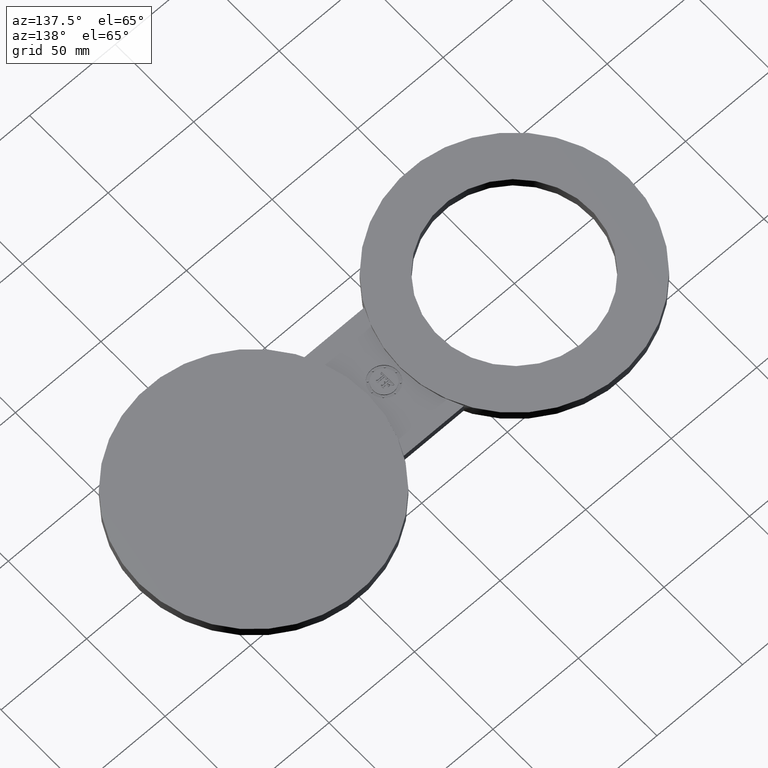
[diagram: clean part render]
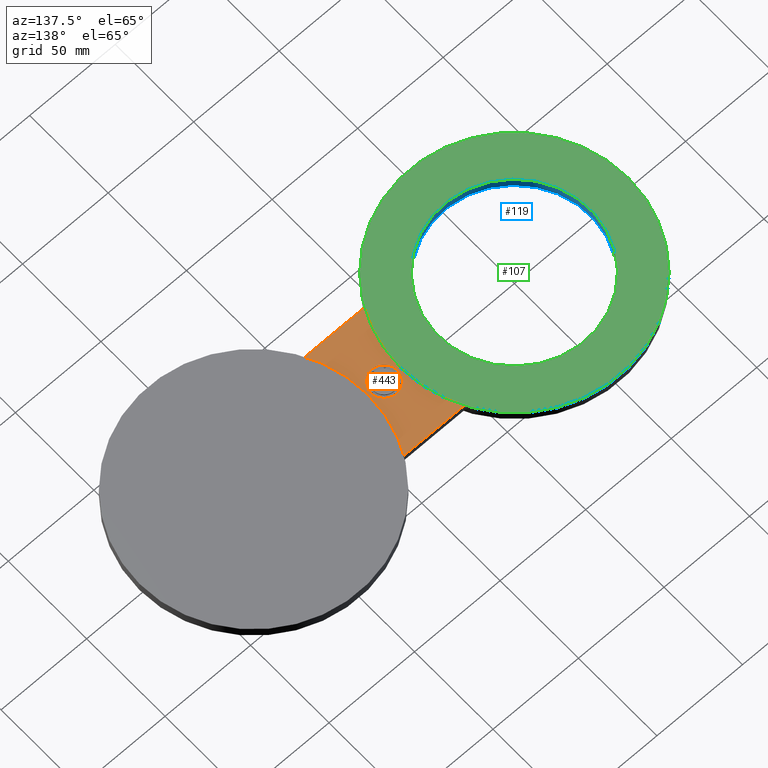
[diagram: same view with three faces highlighted in distinct colors, each labeled with its STEP entity id]
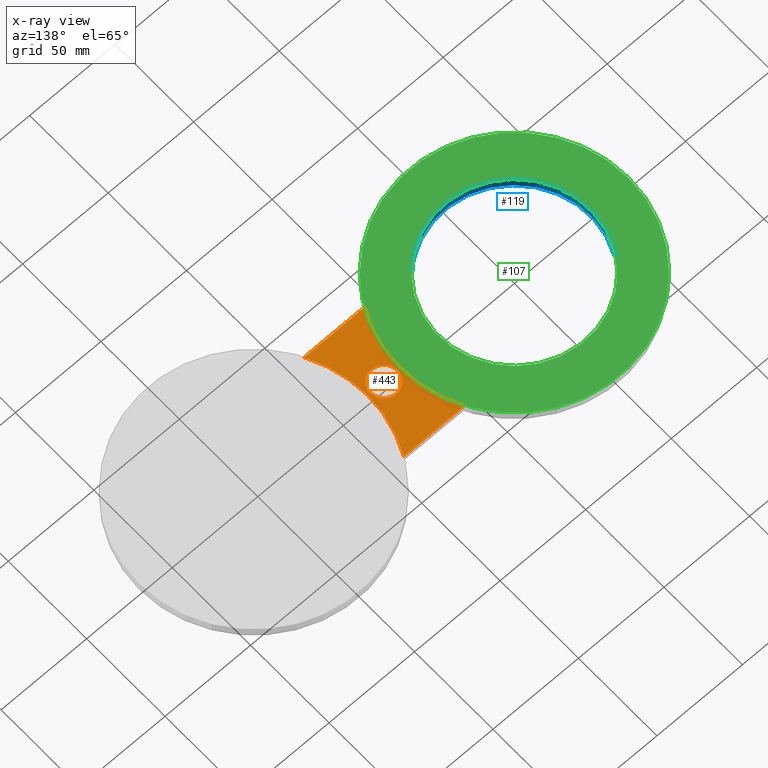
[diagram: x-ray of the same camera — body ghosted, the three highlighted faces saturated]
A machine part, auxiliary view with three faces highlighted in distinct colors.
The next image is the same camera in x-ray (body ghosted, the three faces saturated) — at least one of them is partly hidden behind the body in this view.
Their STEP definitions:

[orange] entity #443 — the highlighted planar face has unit normal (0, 0, 1).
#155=AXIS2_PLACEMENT_3D('Circle Axis2P3D',#153,#154,$) ;
#204=AXIS2_PLACEMENT_3D('Circle Axis2P3D',#202,#203,$) ;
#332=AXIS2_PLACEMENT_3D('Circle Axis2P3D',#330,#331,$) ;
#348=AXIS2_PLACEMENT_3D('Circle Axis2P3D',#346,#347,$) ;
#415=AXIS2_PLACEMENT_3D('Plane Axis2P3D',#412,#413,#414) ;
#427=AXIS2_PLACEMENT_3D('Circle Axis2P3D',#425,#426,$) ;
#436=AXIS2_PLACEMENT_3D('Circle Axis2P3D',#434,#435,$) ;
#150=CARTESIAN_POINT('Vertex',(2.62500000001,0.,0.0937500000004)) ;
#153=CARTESIAN_POINT('Axis2P3D Location',(0.,0.,0.0937500000004)) ;
#157=CARTESIAN_POINT('Vertex',(2.30827316409,1.25000000001,0.0937500000004)) ;
#199=CARTESIAN_POINT('Vertex',(2.30827316409,-1.25000000001,0.0937500000004)) ;
#202=CARTESIAN_POINT('Axis2P3D Location',(0.,0.,0.0937500000004)) ;
#234=CARTESIAN_POINT('Vertex',(3.69172683594,-1.25000000001,0.0937500000004)) ;
#237=CARTESIAN_POINT('Line Origine',(3.00000000001,-1.25000000001,0.0937500000004)) ;
#301=CARTESIAN_POINT('Vertex',(3.37500000001,1.05625786427E-015,0.0937500000004)) ;
#327=CARTESIAN_POINT('Vertex',(3.69172683594,1.25000000001,0.0937500000004)) ;
#330=CARTESIAN_POINT('Axis2P3D Location',(6.00000000002,7.34788079491E-016,0.0937500000004)) ;
#346=CARTESIAN_POINT('Axis2P3D Location',(6.00000000002,7.34788079491E-016,0.0937500000004)) ;
#391=CARTESIAN_POINT('Line Origine',(3.00000000001,1.25000000001,0.0937500000004)) ;
#412=CARTESIAN_POINT('Axis2P3D Location',(0.,0.,0.0937500000004)) ;
#425=CARTESIAN_POINT('Axis2P3D Location',(3.00000000001,0.,0.0937500000004)) ;
#429=CARTESIAN_POINT('Vertex',(3.00000000001,0.312499996876,0.0937500000004)) ;
#431=CARTESIAN_POINT('Vertex',(3.00000000001,-0.312499996876,0.0937500000004)) ;
#434=CARTESIAN_POINT('Axis2P3D Location',(3.00000000001,0.,0.0937500000004)) ;
#154=DIRECTION('Axis2P3D Direction',(0.,0.,0.0393700787402)) ;
#203=DIRECTION('Axis2P3D Direction',(0.,0.,0.0393700787402)) ;
#238=DIRECTION('Vector Direction',(0.0393700787402,0.,0.)) ;
#331=DIRECTION('Axis2P3D Direction',(0.,0.,0.0393700787402)) ;
#347=DIRECTION('Axis2P3D Direction',(0.,0.,0.0393700787402)) ;
#392=DIRECTION('Vector Direction',(-0.0393700787402,0.,0.)) ;
#413=DIRECTION('Axis2P3D Direction',(0.,0.,0.0393700787402)) ;
#414=DIRECTION('Axis2P3D XDirection',(0.0393700787402,0.,0.)) ;
#426=DIRECTION('Axis2P3D Direction',(0.,0.,0.0393700787402)) ;
#435=DIRECTION('Axis2P3D Direction',(0.,0.,0.0393700787402)) ;
#239=VECTOR('Line Direction',#238,0.0393700787402) ;
#393=VECTOR('Line Direction',#392,0.0393700787402) ;
#418=ORIENTED_EDGE('',*,*,#350,.F.) ;
#419=ORIENTED_EDGE('',*,*,#334,.F.) ;
#420=ORIENTED_EDGE('',*,*,#395,.T.) ;
#421=ORIENTED_EDGE('',*,*,#159,.F.) ;
#422=ORIENTED_EDGE('',*,*,#206,.F.) ;
#423=ORIENTED_EDGE('',*,*,#241,.T.) ;
#440=ORIENTED_EDGE('',*,*,#433,.F.) ;
#441=ORIENTED_EDGE('',*,*,#438,.F.) ;
#442=FACE_BOUND('',#439,.T.) ;
#443=ADVANCED_FACE('PartBody',(#424,#442),#416,.T.) ;
#156=CIRCLE('generated circle',#155,2.62500000001) ;
#205=CIRCLE('generated circle',#204,2.62500000001) ;
#333=CIRCLE('generated circle',#332,2.62500000001) ;
#349=CIRCLE('generated circle',#348,2.62500000001) ;
#428=CIRCLE('generated circle',#427,0.312499996876) ;
#437=CIRCLE('generated circle',#436,0.312499996876) ;
#159=EDGE_CURVE('',#151,#158,#156,.T.) ;
#206=EDGE_CURVE('',#200,#151,#205,.T.) ;
#241=EDGE_CURVE('',#200,#235,#240,.T.) ;
#334=EDGE_CURVE('',#328,#302,#333,.T.) ;
#350=EDGE_CURVE('',#302,#235,#349,.T.) ;
#395=EDGE_CURVE('',#328,#158,#394,.T.) ;
#433=EDGE_CURVE('',#430,#432,#428,.T.) ;
#438=EDGE_CURVE('',#432,#430,#437,.T.) ;
#417=EDGE_LOOP('',(#418,#419,#420,#421,#422,#423)) ;
#439=EDGE_LOOP('',(#440,#441)) ;
#424=FACE_OUTER_BOUND('',#417,.T.) ;
#240=LINE('Line',#237,#239) ;
#394=LINE('Line',#391,#393) ;
#416=PLANE('',#415) ;
#151=VERTEX_POINT('',#150) ;
#158=VERTEX_POINT('',#157) ;
#200=VERTEX_POINT('',#199) ;
#235=VERTEX_POINT('',#234) ;
#302=VERTEX_POINT('',#301) ;
#328=VERTEX_POINT('',#327) ;
#430=VERTEX_POINT('',#429) ;
#432=VERTEX_POINT('',#431) ;

[blue] entity #119 — the highlighted cylindrical surface (partial cylindrical patch) has radius 44.45 mm, axis along (0, -0, -1).
#38=AXIS2_PLACEMENT_3D('Cylinder Axis2P3D',#35,#36,#37) ;
#100=AXIS2_PLACEMENT_3D('Circle Axis2P3D',#98,#99,$) ;
#110=AXIS2_PLACEMENT_3D('Circle Axis2P3D',#108,#109,$) ;
#35=CARTESIAN_POINT('Axis2P3D Location',(8.52336574023E-017,-6.99353086378E-017,0.121062992126)) ;
#40=CARTESIAN_POINT('Line Origine',(-1.53576948331,0.838994692561,1.74838271595E-017)) ;
#44=CARTESIAN_POINT('Vertex',(-1.53576948331,0.838994692561,-0.125)) ;
#46=CARTESIAN_POINT('Vertex',(-1.53576948331,0.838994692561,0.125000000001)) ;
#53=CARTESIAN_POINT('Vertex',(1.53576948331,-0.838994692561,-0.125)) ;
#56=CARTESIAN_POINT('Line Origine',(1.53576948331,-0.838994692561,1.74838271595E-017)) ;
#60=CARTESIAN_POINT('Vertex',(1.53576948331,-0.838994692561,0.125000000001)) ;
#98=CARTESIAN_POINT('Axis2P3D Location',(-6.99353086378E-017,2.79741234551E-016,0.125000000001)) ;
#108=CARTESIAN_POINT('Axis2P3D Location',(8.52336574023E-017,-6.99353086378E-017,-0.125)) ;
#36=DIRECTION('Axis2P3D Direction',(0.,-0.,-0.0393700787402)) ;
#37=DIRECTION('Axis2P3D XDirection',(0.0345504945626,-0.0188750212049,0.)) ;
#41=DIRECTION('Vector Direction',(0.,0.,-0.0393700787402)) ;
#57=DIRECTION('Vector Direction',(0.,0.,-0.0393700787402)) ;
#99=DIRECTION('Axis2P3D Direction',(0.,0.,0.0393700787402)) ;
#109=DIRECTION('Axis2P3D Direction',(0.,-0.,-0.0393700787402)) ;
#42=VECTOR('Line Direction',#41,0.0393700787402) ;
#58=VECTOR('Line Direction',#57,0.0393700787402) ;
#114=ORIENTED_EDGE('',*,*,#62,.F.) ;
#115=ORIENTED_EDGE('',*,*,#112,.F.) ;
#116=ORIENTED_EDGE('',*,*,#48,.T.) ;
#117=ORIENTED_EDGE('',*,*,#102,.T.) ;
#119=ADVANCED_FACE('PartBody',(#118),#39,.F.) ;
#101=CIRCLE('generated circle',#100,1.75000000001) ;
#111=CIRCLE('generated circle',#110,1.75000000001) ;
#39=CYLINDRICAL_SURFACE('generated cylinder',#38,1.75000000001) ;
#48=EDGE_CURVE('',#45,#47,#43,.F.) ;
#62=EDGE_CURVE('',#54,#61,#59,.F.) ;
#102=EDGE_CURVE('',#47,#61,#101,.T.) ;
#112=EDGE_CURVE('',#45,#54,#111,.F.) ;
#113=EDGE_LOOP('',(#114,#115,#116,#117)) ;
#118=FACE_OUTER_BOUND('',#113,.T.) ;
#43=LINE('Line',#40,#42) ;
#59=LINE('Line',#56,#58) ;
#45=VERTEX_POINT('',#44) ;
#47=VERTEX_POINT('',#46) ;
#54=VERTEX_POINT('',#53) ;
#61=VERTEX_POINT('',#60) ;

[green] entity #107 — the highlighted planar face has unit normal (0, 0, 1).
#65=AXIS2_PLACEMENT_3D('Circle Axis2P3D',#63,#64,$) ;
#78=AXIS2_PLACEMENT_3D('Plane Axis2P3D',#75,#76,#77) ;
#82=AXIS2_PLACEMENT_3D('Circle Axis2P3D',#80,#81,$) ;
#91=AXIS2_PLACEMENT_3D('Circle Axis2P3D',#89,#90,$) ;
#100=AXIS2_PLACEMENT_3D('Circle Axis2P3D',#98,#99,$) ;
#46=CARTESIAN_POINT('Vertex',(-1.53576948331,0.838994692561,0.125000000001)) ;
#60=CARTESIAN_POINT('Vertex',(1.53576948331,-0.838994692561,0.125000000001)) ;
#63=CARTESIAN_POINT('Axis2P3D Location',(8.52336574023E-017,-6.99353086378E-017,0.125000000001)) ;
#75=CARTESIAN_POINT('Axis2P3D Location',(0.,0.,0.125000000001)) ;
#80=CARTESIAN_POINT('Axis2P3D Location',(0.,0.,0.125000000001)) ;
#84=CARTESIAN_POINT('Vertex',(2.62500000001,0.,0.125000000001)) ;
#86=CARTESIAN_POINT('Vertex',(-2.62500000001,3.21469784777E-016,0.125000000001)) ;
#89=CARTESIAN_POINT('Axis2P3D Location',(0.,0.,0.125000000001)) ;
#98=CARTESIAN_POINT('Axis2P3D Location',(-6.99353086378E-017,2.79741234551E-016,0.125000000001)) ;
#64=DIRECTION('Axis2P3D Direction',(0.,-0.,-0.0393700787402)) ;
#76=DIRECTION('Axis2P3D Direction',(0.,0.,0.0393700787402)) ;
#77=DIRECTION('Axis2P3D XDirection',(0.0393700787402,0.,0.)) ;
#81=DIRECTION('Axis2P3D Direction',(0.,0.,0.0393700787402)) ;
#90=DIRECTION('Axis2P3D Direction',(0.,0.,0.0393700787402)) ;
#99=DIRECTION('Axis2P3D Direction',(0.,0.,0.0393700787402)) ;
#95=ORIENTED_EDGE('',*,*,#88,.T.) ;
#96=ORIENTED_EDGE('',*,*,#93,.T.) ;
#104=ORIENTED_EDGE('',*,*,#102,.F.) ;
#105=ORIENTED_EDGE('',*,*,#67,.F.) ;
#106=FACE_BOUND('',#103,.T.) ;
#107=ADVANCED_FACE('PartBody',(#97,#106),#79,.T.) ;
#66=CIRCLE('generated circle',#65,1.75000000001) ;
#83=CIRCLE('generated circle',#82,2.62500000001) ;
#92=CIRCLE('generated circle',#91,2.62500000001) ;
#101=CIRCLE('generated circle',#100,1.75000000001) ;
#67=EDGE_CURVE('',#61,#47,#66,.F.) ;
#88=EDGE_CURVE('',#85,#87,#83,.T.) ;
#93=EDGE_CURVE('',#87,#85,#92,.T.) ;
#102=EDGE_CURVE('',#47,#61,#101,.T.) ;
#94=EDGE_LOOP('',(#95,#96)) ;
#103=EDGE_LOOP('',(#104,#105)) ;
#97=FACE_OUTER_BOUND('',#94,.T.) ;
#79=PLANE('',#78) ;
#47=VERTEX_POINT('',#46) ;
#61=VERTEX_POINT('',#60) ;
#85=VERTEX_POINT('',#84) ;
#87=VERTEX_POINT('',#86) ;